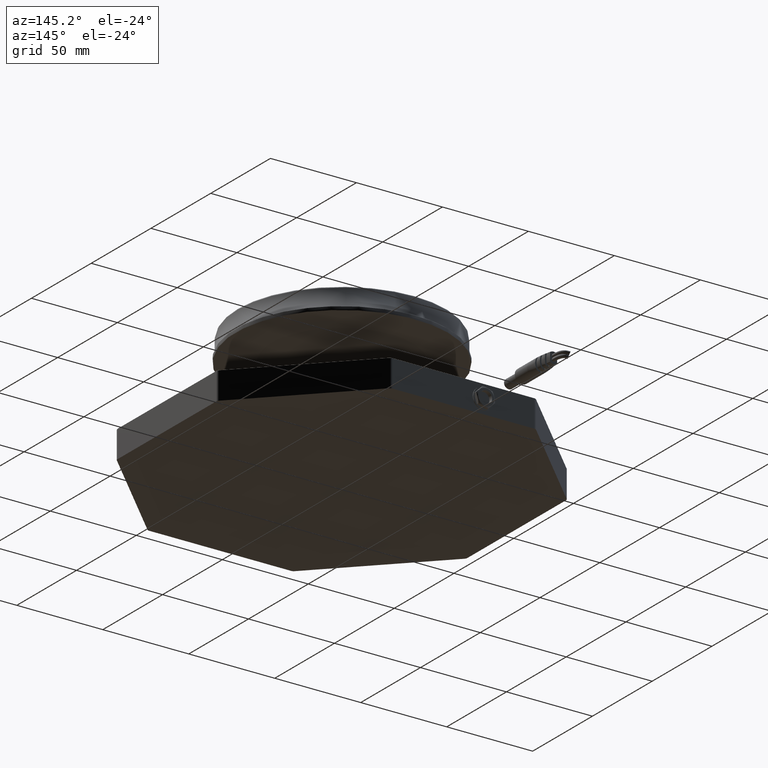
[diagram: clean part render]
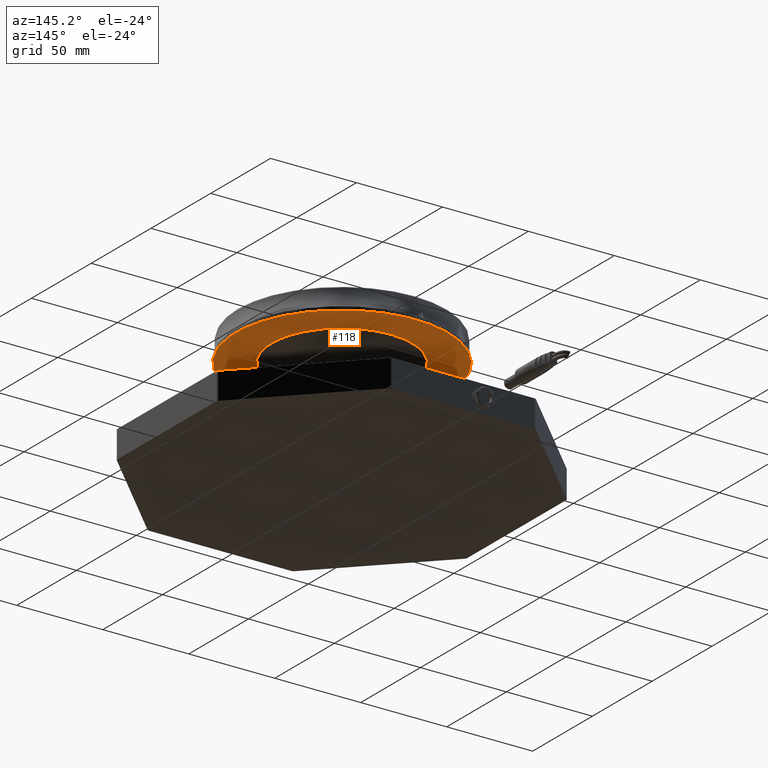
[diagram: same view with one face highlighted and labeled with its STEP entity id]
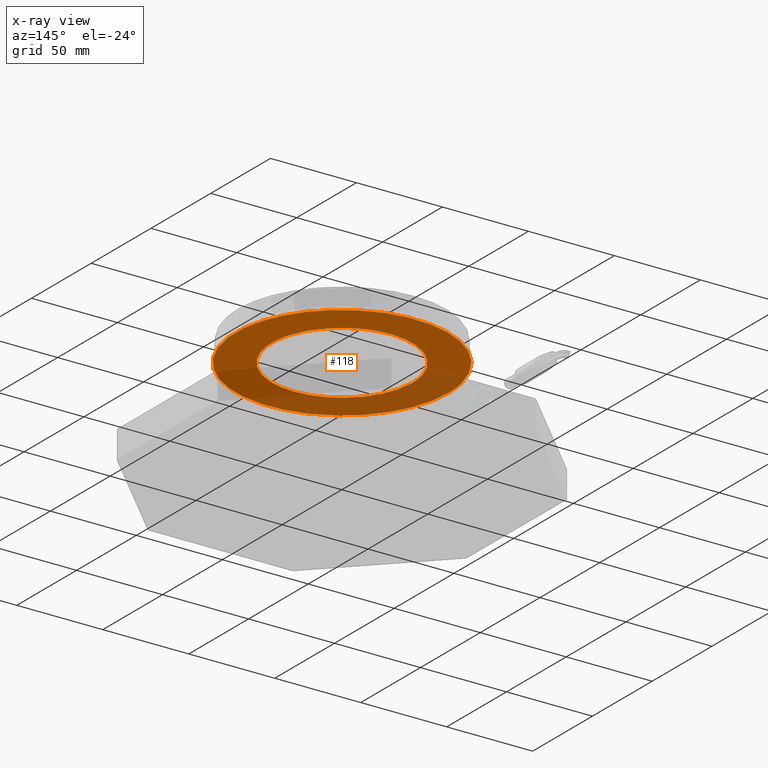
[diagram: x-ray of the same camera — body ghosted, the highlighted face saturated]
A machine part, auxiliary view. The second image highlights one B-rep face of the part: STEP entity #118.
The next image is the same camera in x-ray: the body ghosted, the highlighted face saturated — about 44% of this face is hidden behind the body in this view.
In plain terms, the highlighted face is a freeform B-spline surface patch.
Its self-contained STEP definition (entity closure, byte-faithful):
#118=ADVANCED_FACE('',(#252),#2072,.T.);
#252=FACE_OUTER_BOUND('',#386,.T.);
#386=EDGE_LOOP('',(#550,#551,#552,#553));
#550=ORIENTED_EDGE('',*,*,#1191,.F.);
#551=ORIENTED_EDGE('',*,*,#1202,.T.);
#552=ORIENTED_EDGE('',*,*,#1191,.T.);
#553=ORIENTED_EDGE('',*,*,#1203,.F.);
#1191=EDGE_CURVE('',#1857,#1856,#1610,.T.);
#1202=EDGE_CURVE('',#1857,#1857,#1522,.T.);
#1203=EDGE_CURVE('',#1856,#1856,#1523,.T.);
#1522=(
BOUNDED_CURVE()
B_SPLINE_CURVE(2,(#3117,#3118,#3119,#3120,#3121,#3122,#3123,#3124,#3125),
 .UNSPECIFIED.,.T.,.F.)
B_SPLINE_CURVE_WITH_KNOTS((3,2,2,2,3),(0.,97.1617778100464,194.323555620093,
291.485333430139,388.647111240186),.UNSPECIFIED.)
CURVE()
GEOMETRIC_REPRESENTATION_ITEM()
RATIONAL_B_SPLINE_CURVE((1.,0.707106781186548,1.,0.707106781186548,1.,0.707106781186548,
1.,0.707106781186548,1.))
REPRESENTATION_ITEM('')
);
#1523=(
BOUNDED_CURVE()
B_SPLINE_CURVE(2,(#3126,#3127,#3128,#3129,#3130,#3131,#3132,#3133,#3134),
 .UNSPECIFIED.,.T.,.F.)
B_SPLINE_CURVE_WITH_KNOTS((3,2,2,2,3),(0.,97.1617778100464,194.323555620093,
291.485333430139,388.647111240186),.UNSPECIFIED.)
CURVE()
GEOMETRIC_REPRESENTATION_ITEM()
RATIONAL_B_SPLINE_CURVE((1.,0.707106781186548,1.,0.707106781186548,1.,0.707106781186548,
1.,0.707106781186548,1.))
REPRESENTATION_ITEM('')
);
#1610=B_SPLINE_CURVE_WITH_KNOTS('',1,(#3059,#3060),.UNSPECIFIED.,.F.,.F.,
(2,2),(38.7398887529369,39.7398887529369),.UNSPECIFIED.);
#1856=VERTEX_POINT('',#2983);
#1857=VERTEX_POINT('',#2984);
#2072=(
BOUNDED_SURFACE()
B_SPLINE_SURFACE(2,1,((#2384,#2385),(#2386,#2387),(#2388,#2389),(#2390,
#2391),(#2392,#2393),(#2394,#2395),(#2396,#2397),(#2398,#2399),(#2400,#2401)),
 .UNSPECIFIED.,.T.,.F.,.F.)
B_SPLINE_SURFACE_WITH_KNOTS((3,2,2,2,3),(2,2),(0.,97.1617778100464,194.323555620093,
291.485333430139,388.647111240186),(38.7398887529369,39.7398887529369),
 .UNSPECIFIED.)
GEOMETRIC_REPRESENTATION_ITEM()
RATIONAL_B_SPLINE_SURFACE(((1.,1.),(0.707106781186548,0.707106781186548),
(1.,1.),(0.707106781186548,0.707106781186548),(1.,1.),(0.707106781186548,
0.707106781186548),(1.,1.),(0.707106781186548,0.707106781186548),(1.,1.)))
REPRESENTATION_ITEM('')
SURFACE()
);
#2384=CARTESIAN_POINT('',(-41.,-1.55431223447522E-15,61.));
#2385=CARTESIAN_POINT('',(-62.,4.44089209850063E-16,61.));
#2386=CARTESIAN_POINT('',(-41.,-40.858128052735,61.));
#2387=CARTESIAN_POINT('',(-62.,-61.8580713446255,61.));
#2388=CARTESIAN_POINT('',(-0.141982279988874,-40.858128052735,61.0949524351928));
#2389=CARTESIAN_POINT('',(-0.142095696054849,-61.8580713446255,61.1437553502922));
#2390=CARTESIAN_POINT('',(40.7160354400223,-40.858128052735,61.1899048703857));
#2391=CARTESIAN_POINT('',(61.7158086078903,-61.8580713446255,61.2875107005844));
#2392=CARTESIAN_POINT('',(40.7160354400223,-3.44936533941824E-15,61.1899048703857));
#2393=CARTESIAN_POINT('',(61.7158086078903,-8.01951811721248E-15,61.2875107005844));
#2394=CARTESIAN_POINT('',(40.7160354400223,40.858128052735,61.1899048703857));
#2395=CARTESIAN_POINT('',(61.7158086078903,61.8580713446255,61.2875107005844));
#2396=CARTESIAN_POINT('',(-0.141982279988867,40.858128052735,61.0949524351928));
#2397=CARTESIAN_POINT('',(-0.142095696054833,61.8580713446255,61.1437553502922));
#2398=CARTESIAN_POINT('',(-41.,40.858128052735,61.));
#2399=CARTESIAN_POINT('',(-62.,61.8580713446255,61.));
#2400=CARTESIAN_POINT('',(-41.,-1.55431223447522E-15,61.));
#2401=CARTESIAN_POINT('',(-62.,4.44089209850063E-16,61.));
#2983=CARTESIAN_POINT('',(-62.,4.44089209850063E-16,61.));
#2984=CARTESIAN_POINT('',(-41.,-1.55431223447522E-15,61.));
#3059=CARTESIAN_POINT('',(-41.,-1.55431223447522E-15,61.));
#3060=CARTESIAN_POINT('',(-62.,4.44089209850063E-16,61.));
#3117=CARTESIAN_POINT('',(-41.,-1.55431223447522E-15,61.));
#3118=CARTESIAN_POINT('',(-41.,-40.858128052735,61.));
#3119=CARTESIAN_POINT('',(-0.141982279988874,-40.858128052735,61.0949524351929));
#3120=CARTESIAN_POINT('',(40.7160354400223,-40.858128052735,61.1899048703857));
#3121=CARTESIAN_POINT('',(40.7160354400223,-3.44936533941824E-15,61.1899048703857));
#3122=CARTESIAN_POINT('',(40.7160354400223,40.858128052735,61.1899048703857));
#3123=CARTESIAN_POINT('',(-0.141982279988867,40.858128052735,61.0949524351929));
#3124=CARTESIAN_POINT('',(-41.,40.858128052735,61.));
#3125=CARTESIAN_POINT('',(-41.,-1.55431223447522E-15,61.));
#3126=CARTESIAN_POINT('',(-62.,4.44089209850063E-16,61.));
#3127=CARTESIAN_POINT('',(-62.,-61.8580713446255,61.));
#3128=CARTESIAN_POINT('',(-0.142095696054849,-61.8580713446255,61.1437553502922));
#3129=CARTESIAN_POINT('',(61.7158086078903,-61.8580713446255,61.2875107005844));
#3130=CARTESIAN_POINT('',(61.7158086078903,-8.01951811721248E-15,61.2875107005844));
#3131=CARTESIAN_POINT('',(61.7158086078904,61.8580713446255,61.2875107005844));
#3132=CARTESIAN_POINT('',(-0.142095696054833,61.8580713446255,61.1437553502922));
#3133=CARTESIAN_POINT('',(-62.,61.8580713446255,61.));
#3134=CARTESIAN_POINT('',(-62.,4.44089209850063E-16,61.));